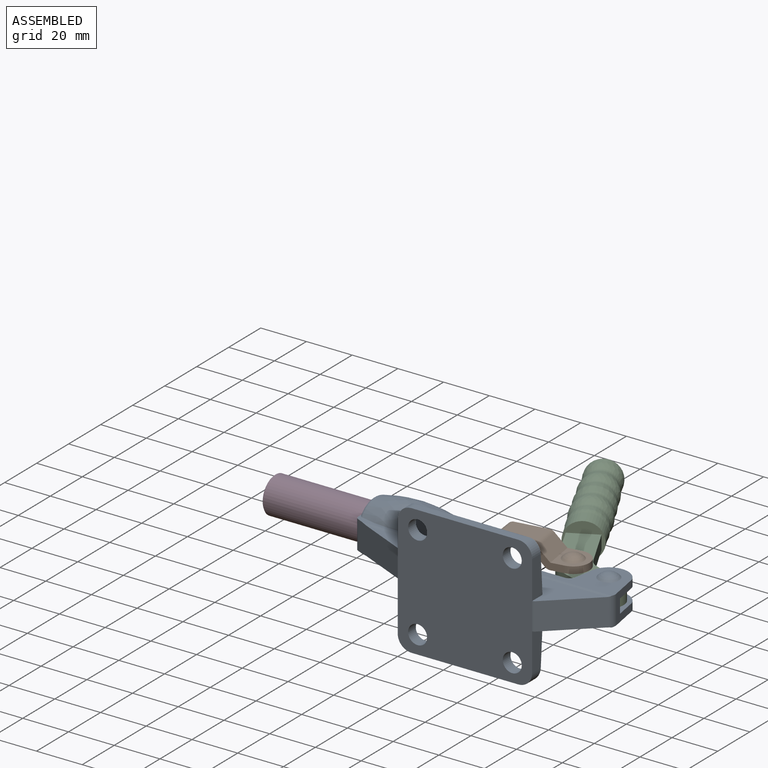
[diagram: assembled view]
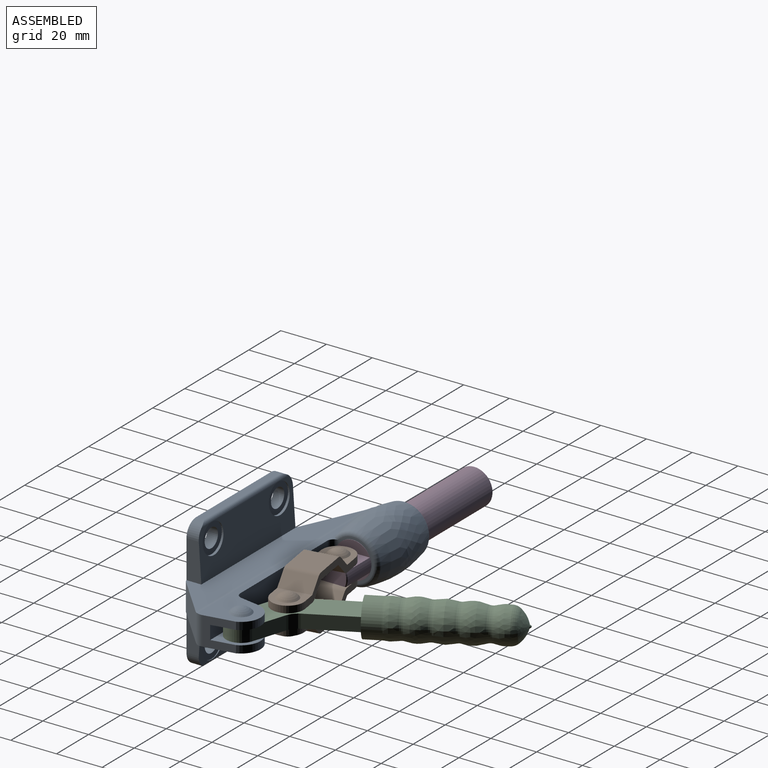
[diagram: assembled view, second angle]
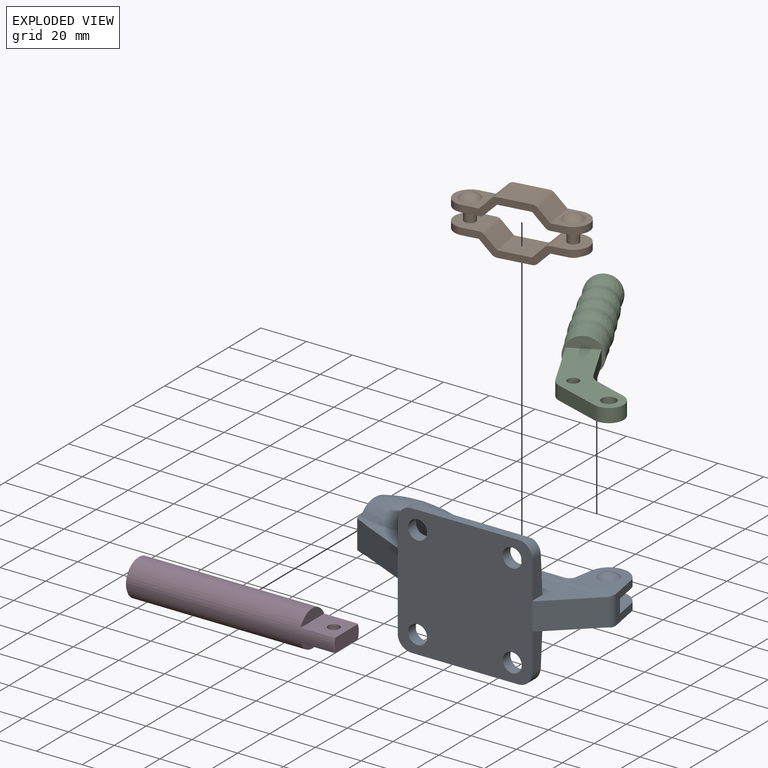
[diagram: exploded view]
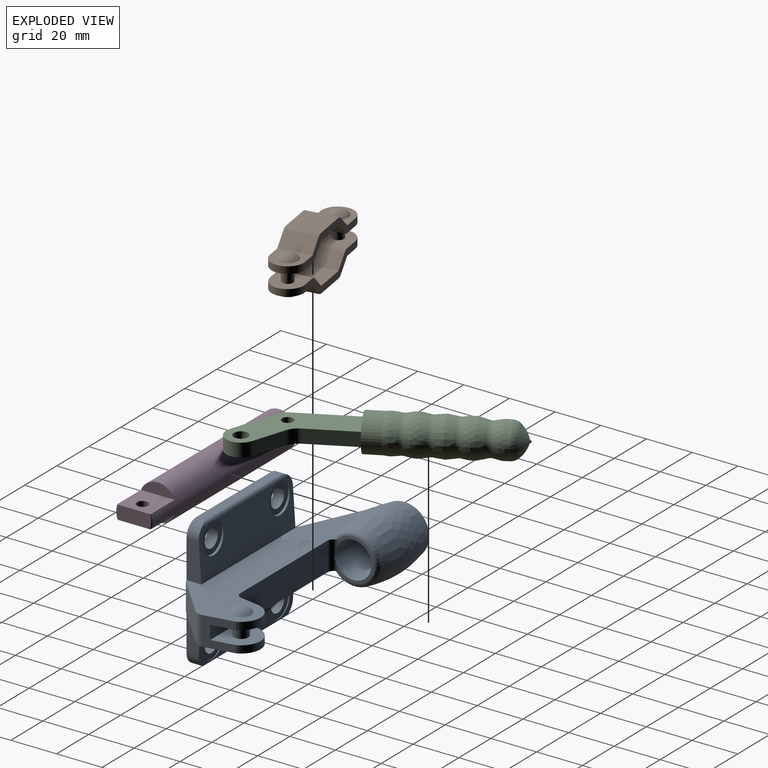
[diagram: exploded view, second angle]
ASSEMBLY  parts=4 mates=4
PART A: 56 faces, bbox 157.3x88.4x101.1 mm
  f0: cylinder r=5mm len=109.05mm, axis (1,0,0), area 169.5mm2, adj f14,f20,f22,f33,f34
  f1: plane 157.27x64.79mm, normal (0,0,1), area 537.5mm2, adj f2,f12,f20,f21,f23,f24,f25,f26
  f2: torus R=9.04mm, axis (1,0,0), area 134.2mm2, adj f1,f33,f44,f45
  f3: cylinder r=6.5mm len=13mm, axis (0,1,0), area 29.6mm2, adj f42,f50,f55
  f4: cylinder r=4.15mm len=8.3mm, axis (0,1,0), area 125.2mm2, adj f5,f17
  f5: plane 13x13mm, normal (0,1,0), area 78.6mm2, adj f4,f6
  f6: cylinder r=6.5mm len=13mm, axis (0,1,0), area 29.6mm2, adj f5,f7,f43
  f7: cylinder r=1.5mm len=54.51mm, axis (1,0,0), area 115mm2, adj f6,f8,f9,f10,f43,f48
  f8: cylinder r=6.5mm len=13mm, axis (0,1,0), area 29.6mm2, adj f7,f15,f43
  f9: cylinder r=6mm len=6mm, axis (0,1,0), area 45.7mm2, adj f7,f17,f41,f43,f48
  f10: cylinder r=6mm len=6mm, axis (0,1,0), area 45.7mm2, adj f7,f17,f19,f43,f48
  f11: cylinder r=6mm len=6mm, axis (0,1,0), area 45.7mm2, adj f17,f19,f42,f49,f50
  f12: cylinder r=5mm len=109.05mm, axis (1,0,0), area 169.5mm2, adj f1,f13,f20,f22,f34
  f13: plane 104.3x17.87mm, normal (0,0,1), area 1000.4mm2, adj f12,f18,f19,f20,f22,f41,f42
  f14: plane 104.3x17.87mm, normal (0,0,-1), area 1000.4mm2, adj f0,f18,f19,f20,f22,f41,f43
  f15: plane 13x13mm, normal (0,1,0), area 78.6mm2, adj f8,f16
  f16: cylinder r=4.15mm len=8.3mm, axis (0,1,0), area 125.2mm2, adj f15,f17
  f17: plane 58.8x57.2mm, normal (0,-1,0), area 3116mm2, adj f4,f9,f10,f11,f16,f19,f41,f47
  f18: cylinder r=2mm len=12mm, axis (0,0,1), area 14.9mm2, adj f13,f14,f22,f41
  f19: plane 45.2x6.5mm, normal (-1,0,0), area 273.1mm2, adj f10,f11,f13,f14,f17,f20,f42,f43
  f20: plane 31.87x14.41mm, normal (-0.41,-0.91,0), area 421.1mm2, adj f0,f1,f12,f13,f14,f19,f21,f33
  f21: cylinder r=2mm len=12.5mm, axis (0,0,1), area 28.7mm2, adj f1,f20,f23,f33
  f22: plane 19.14x17.74mm, normal (0.68,-0.73,0), area 313.2mm2, adj f0,f12,f13,f14,f18,f34
  f23: plane 18.35x18.08mm, normal (-1,0,0), area 71.3mm2, adj f1,f21,f31,f33,f40
  f24: cylinder r=3mm len=12.5mm, axis (0,0,1), area 47.6mm2, adj f1,f25,f31,f33,f45
  f25: plane 54.31x12.5mm, normal (0,1,0), area 678.9mm2, adj f1,f24,f29,f33
  f26: plane 13.17x12.5mm, normal (0.98,0.17,0), area 105.8mm2, adj f1,f28,f30,f33,f34,f38,f39,f46
  f27: plane 12.5x8.3mm, normal (-0.98,0.17,0), area 54.9mm2, adj f1,f28,f29,f30,f33,f38,f39,f46
  f28: cylinder r=8.5mm len=16.22mm, axis (0,0,1), area 71.1mm2, adj f1,f26,f27,f39
  f29: cylinder r=3mm len=12.5mm, axis (0,0,1), area 52.4mm2, adj f1,f25,f27,f33
  f30: plane 19.45x6mm, normal (0,1,0), area 116.7mm2, adj f26,f27,f38,f39
  f31: cylinder r=7.95mm len=33mm, axis (-1,0,0), area 1648.4mm2, adj f23,f24,f45
  f32: cylinder r=4.15mm len=8.3mm, axis (0,0,1), area 39.1mm2, adj f33,f36
  f33: plane 157.27x64.79mm, normal (0,0,-1), area 547mm2, adj f0,f2,f20,f21,f23,f24,f25,f26
  f34: cylinder r=4mm len=12.5mm, axis (0,0,1), area 49.6mm2, adj f0,f1,f12,f22,f26,f33
  f35: sphere r=5.87mm, area 77.5mm2, adj f1
  f36: plane 8.3x8.3mm, normal (0,0,-1), area 54.1mm2, adj f32
  f37: cylinder r=3.15mm len=6.3mm, axis (0,0,1), area 118.8mm2, adj f38,f39
  f38: plane 19.45x15.3mm, normal (0,0,1), area 206mm2, adj f26,f27,f30,f37,f46
  f39: plane 19.45x15.3mm, normal (0,0,-1), area 206mm2, adj f26,f27,f28,f30,f37
  f40: torus R=9.04mm, axis (1,0,0), area 134.2mm2, adj f1,f23,f33,f44
  f41: plane 45.2x6.5mm, normal (1,0,0), area 197.7mm2, adj f9,f13,f14,f17,f18,f42,f43,f47
  f42: plane 58.83x21.23mm, normal (0,1,0.07), area 977.2mm2, adj f3,f11,f13,f19,f41,f47,f50,f53
  f43: plane 58.83x21.23mm, normal (0,1,-0.07), area 977.2mm2, adj f6,f7,f8,f9,f10,f14,f19,f41
  f44: revolved ~29.92x25.45mm, area 4188.9mm2, adj f1,f2,f33,f40
  f45: plane 18.08x15.57mm, normal (1,0,0), area 44.6mm2, adj f1,f2,f24,f31,f33
  f46: cylinder r=8.5mm len=16.22mm, axis (0,0,1), area 71.1mm2, adj f26,f27,f33,f38
  f47: cylinder r=6mm len=6mm, axis (0,1,0), area 45.7mm2, adj f17,f41,f42,f49,f50
  f48: plane 46.8x3.6mm, normal (0,0,-1), area 168.3mm2, adj f7,f9,f10,f17
  f49: plane 46.8x3.6mm, normal (0,0,1), area 168.3mm2, adj f11,f17,f47,f50
  f50: cylinder r=1.5mm len=54.51mm, axis (1,0,0), area 115mm2, adj f3,f11,f42,f47,f49,f53
  f51: cylinder r=4.15mm len=8.3mm, axis (0,1,0), area 125.2mm2, adj f17,f52
  f52: plane 13x13mm, normal (0,1,0), area 78.6mm2, adj f51,f53
  f53: cylinder r=6.5mm len=13mm, axis (0,1,0), area 29.6mm2, adj f42,f50,f52
  f54: cylinder r=4.15mm len=8.3mm, axis (0,1,0), area 125.2mm2, adj f17,f55
  f55: plane 13x13mm, normal (0,1,0), area 78.6mm2, adj f3,f54
PART B: 44 faces, bbox 55x14x24 mm
  f0: plane 14x12.76mm, normal (0,0,-1), area 103.5mm2, adj f2,f29,f30,f31,f36
  f1: cylinder r=3mm len=14mm, axis (0,1,0), area 33mm2, adj f5,f29,f31,f41
  f2: plane 14x5.12mm, normal (0.71,0,-0.71), area 101.4mm2, adj f0,f29,f31,f35
  f3: plane 14x13.76mm, normal (0,0,1), area 151.9mm2, adj f4,f7,f29,f31,f38
  f4: cylinder r=7mm len=14mm, axis (0,0,-1), area 66mm2, adj f3,f6,f29,f31
  f5: plane 14x12.76mm, normal (0,0,1), area 137.9mm2, adj f1,f9,f29,f30,f31
  f6: plane 14x13.76mm, normal (0,0,-1), area 117.5mm2, adj f4,f29,f31,f32,f42
  f7: cylinder r=2.5mm len=6mm, axis (0,0,1), area 94.2mm2, adj f3,f28
  f8: sphere r=5.87mm, area 77.5mm2, adj f22
  f9: cylinder r=2.5mm len=6mm, axis (0,0,1), area 94.2mm2, adj f5,f23
  f10: sphere r=5.87mm, area 77.5mm2, adj f16
  f11: cylinder r=3mm len=14mm, axis (0,1,0), area 33mm2, adj f12,f24,f26,f28
  f12: plane 14x5.12mm, normal (0.71,0,-0.71), area 101.4mm2, adj f11,f13,f24,f26
  f13: plane 14x14mm, normal (0,0,-1), area 196mm2, adj f12,f14,f24,f26
  f14: plane 14x5.12mm, normal (-0.71,0,-0.71), area 101.4mm2, adj f13,f15,f24,f26
  f15: cylinder r=3mm len=14mm, axis (0,1,0), area 33mm2, adj f14,f23,f24,f26
  f16: plane 14x12.76mm, normal (0,0,1), area 94mm2, adj f10,f17,f24,f25,f26
  f17: plane 14x5.12mm, normal (0.71,0,0.71), area 101.4mm2, adj f16,f18,f24,f26
  f18: cylinder r=3mm len=14mm, axis (0,1,0), area 33mm2, adj f17,f19,f24,f26
  f19: plane 14x14mm, normal (0,0,1), area 196mm2, adj f18,f20,f24,f26
  f20: cylinder r=3mm len=14mm, axis (0,1,0), area 33mm2, adj f19,f21,f24,f26
  f21: plane 14x5.12mm, normal (-0.71,0,0.71), area 101.4mm2, adj f20,f22,f24,f26
  f22: plane 14x13.76mm, normal (0,0,1), area 108mm2, adj f8,f21,f24,f26,f27
  f23: plane 14x12.76mm, normal (0,0,-1), area 137.9mm2, adj f9,f15,f24,f25,f26
  f24: plane 41x9mm, normal (0,1,0), area 137.1mm2, adj f11,f12,f13,f14,f15,f16,f17,f18
  f25: cylinder r=7mm len=14mm, axis (0,0,1), area 66mm2, adj f16,f23,f24,f26
  f26: plane 41x9mm, normal (0,-1,0), area 137.1mm2, adj f11,f12,f13,f14,f15,f16,f17,f18
  f27: cylinder r=7mm len=14mm, axis (0,0,1), area 66mm2, adj f22,f24,f26,f28
  f28: plane 14x13.76mm, normal (0,0,-1), area 151.9mm2, adj f7,f11,f24,f26,f27
  f29: plane 41x9mm, normal (0,1,0), area 137.1mm2, adj f0,f1,f2,f3,f4,f5,f6,f30
  f30: cylinder r=7mm len=14mm, axis (0,0,-1), area 66mm2, adj f0,f5,f29,f31
  f31: plane 41x9mm, normal (0,-1,0), area 137.1mm2, adj f0,f1,f2,f3,f4,f5,f6,f30
  f32: plane 14x5.12mm, normal (-0.71,0,-0.71), area 101.4mm2, adj f6,f29,f31,f33
  f33: cylinder r=3mm len=14mm, axis (0,1,0), area 33mm2, adj f29,f31,f32,f34
  f34: plane 14x14mm, normal (0,0,-1), area 196mm2, adj f29,f31,f33,f35
  f35: cylinder r=3mm len=14mm, axis (0,1,0), area 33mm2, adj f2,f29,f31,f34
  f36: cylinder r=4.15mm len=8.3mm, axis (0,0,1), area 39.1mm2, adj f0,f37
  f37: plane 8.3x8.3mm, normal (0,0,-1), area 54.1mm2, adj f36
  f38: cylinder r=3mm len=14mm, axis (0,1,0), area 33mm2, adj f3,f29,f31,f39
  f39: plane 14x5.12mm, normal (0.71,0,0.71), area 101.4mm2, adj f29,f31,f38,f40
  f40: plane 14x14mm, normal (0,0,1), area 196mm2, adj f29,f31,f39,f41
  f41: plane 14x5.12mm, normal (-0.71,0,0.71), area 101.4mm2, adj f1,f29,f31,f40
  f42: cylinder r=4.15mm len=8.3mm, axis (0,0,1), area 39.1mm2, adj f6,f43
  f43: plane 8.3x8.3mm, normal (0,0,-1), area 54.1mm2, adj f42
PART C: 27 faces, bbox 91.4x70.4x20.5 mm
  f0: cylinder r=3.15mm len=6.3mm, axis (0,0,1), area 118.8mm2, adj f4,f10
  f1: plane 16x11.31mm, normal (0.71,-0.71,0), area 123.1mm2, adj f2,f3,f4,f10,f25
  f2: plane 19.3x19.3mm, normal (-0.71,-0.71,0), area 163.8mm2, adj f1,f4,f9,f10
  f3: plane 15.49x15.49mm, normal (0.71,0.71,0), area 131.4mm2, adj f1,f4,f5,f10
  f4: plane 51.54x30.54mm, normal (0,0,1), area 646.1mm2, adj f0,f1,f2,f3,f5,f6,f7,f8
  f5: cylinder r=7mm len=6mm, axis (0,0,1), area 33mm2, adj f3,f4,f6,f10
  f6: plane 15.41x6mm, normal (0,1,0), area 92.4mm2, adj f4,f5,f7,f10
  f7: cylinder r=6.5mm len=13mm, axis (0,0,1), area 122.5mm2, adj f4,f6,f8,f10
  f8: plane 20.79x6mm, normal (0,-1,0), area 124.8mm2, adj f4,f7,f9,f10
  f9: cylinder r=7mm len=6mm, axis (0,0,1), area 33mm2, adj f2,f4,f8,f10
  f10: plane 51.54x30.54mm, normal (0,0,-1), area 646.1mm2, adj f0,f1,f2,f3,f5,f6,f7,f8
  f11: sphere r=0.5mm, area 0.7mm2, adj f12
  f12: cone r=0.41mm half-angle=35.4deg, axis (0.71,-0.71,0), area 2.4mm2, adj f11,f13
  f13: revolved ~12.63x8.96mm, area 154.6mm2, adj f12,f14
  f14: torus R=2.55mm, axis (0.71,-0.71,0), area 127.8mm2, adj f13,f15
  f15: revolved ~15.27x14.56mm, area 289.2mm2, adj f14,f16
  f16: torus R=11.79mm, axis (0.71,-0.71,0), area 146.2mm2, adj f15,f17
  f17: revolved ~16.33x16.33mm, area 416.4mm2, adj f16,f18
  f18: torus R=12.5mm, axis (0.71,-0.71,0), area 130mm2, adj f17,f19
  f19: revolved ~16.61x16.2mm, area 378.5mm2, adj f18,f20
  f20: torus R=12.72mm, axis (0.71,-0.71,0), area 133.8mm2, adj f19,f21
  f21: revolved ~17.03x16.74mm, area 413.3mm2, adj f20,f22
  f22: torus R=12.74mm, axis (0.71,-0.71,0), area 133.4mm2, adj f21,f23
  f23: revolved ~16.52x14.7mm, area 248.6mm2, adj f22,f24
  f24: torus R=13mm, axis (0.71,-0.71,0), area 45.1mm2, adj f23,f25
  f25: cylinder r=8mm len=16.52mm, axis (-0.71,0.71,0), area 369.9mm2, adj f1,f24
  f26: cylinder r=2.5mm len=6mm, axis (0,0,1), area 94.2mm2, adj f4,f10
PART D: 14 faces, bbox 91.2x15.9x15.9 mm
  f0: cone r=4.19mm half-angle=61.2deg, axis (-1,0,0), area 62.9mm2, adj f10
  f1: plane 15x14.73mm, normal (0,0,1), area 201.1mm2, adj f3,f5,f6,f11,f12,f13
  f2: plane 15x14.73mm, normal (0,0,-1), area 201.1mm2, adj f4,f5,f6,f11,f12,f13
  f3: plane 14.72x4.95mm, normal (1,0,0), area 52.7mm2, adj f1,f5
  f4: plane 14.72x4.95mm, normal (1,0,0), area 52.7mm2, adj f2,f5
  f5: cylinder r=7.95mm len=90.49mm, axis (-1,0,0), area 3968.9mm2, adj f1,f2,f3,f4,f6,f7,f13
  f6: cone r=7.95mm half-angle=45deg, axis (-1,0,0), area 3.1mm2, adj f1,f2,f5,f12
  f7: cone r=7.6mm half-angle=45deg, axis (1,0,0), area 24.4mm2, adj f5,f8
  f8: plane 15.19x15.19mm, normal (-1,0,0), area 102.7mm2, adj f7,f9
  f9: cone r=5mm half-angle=45deg, axis (-1,0,0), area 33.1mm2, adj f8,f10
  f10: cylinder r=4.19mm len=43.38mm, axis (-1,0,0), area 1141.6mm2, adj f0,f9
  f11: cylinder r=2.5mm len=6mm, axis (0,0,-1), area 94.2mm2, adj f1,f2
  f12: plane 15.19x6mm, normal (1,0,0), area 88.7mm2, adj f1,f2,f6,f13
  f13: cone r=7.95mm half-angle=45deg, axis (-1,0,0), area 3.1mm2, adj f1,f2,f5,f12
PLACE A at identity fixed
PLACE B rot(axis=(0,0,1),8.9deg) t=(50.09,38.18,0)mm
PLACE C rot(axis=(0,0,-1),17.7deg) t=(70.1,31.8,0)mm
PLACE D t=(-76.01,31.8,0)mm
MATE revolute B.f4 <-> D.f11  axis (0,0,1) through (9.59,31.8,3)mm
MATE slider D.f0 <-> A.f2  axis (-1,0,0) through (-76.01,31.8,0)mm
MATE revolute C.f0 <-> A.f28  axis (0,0,1) through (70.1,31.8,3)mm
MATE revolute C.f26 <-> B.f9  axis (0,0,1) through (50.09,38.18,3)mm
